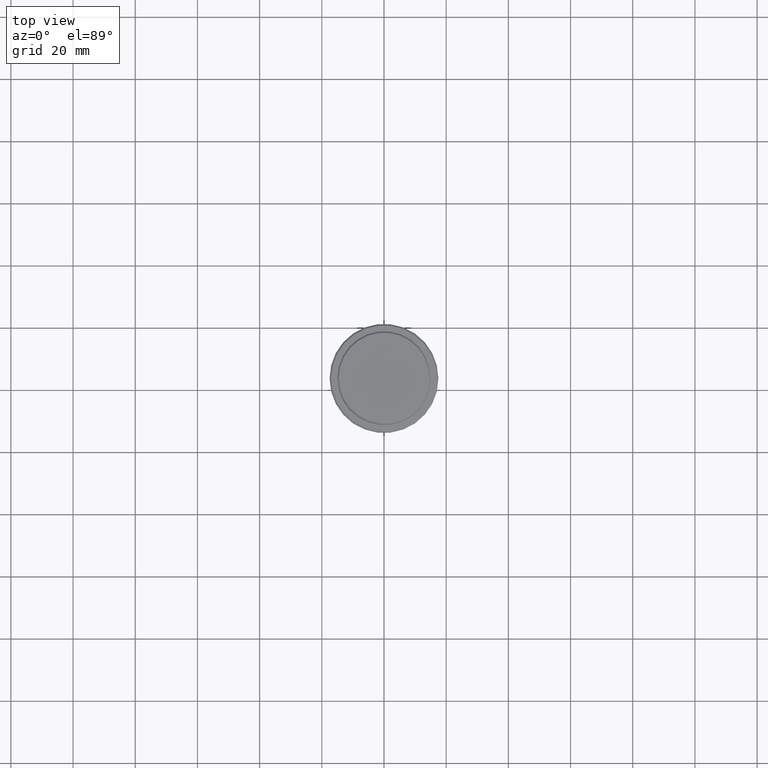
[diagram: clean part render]
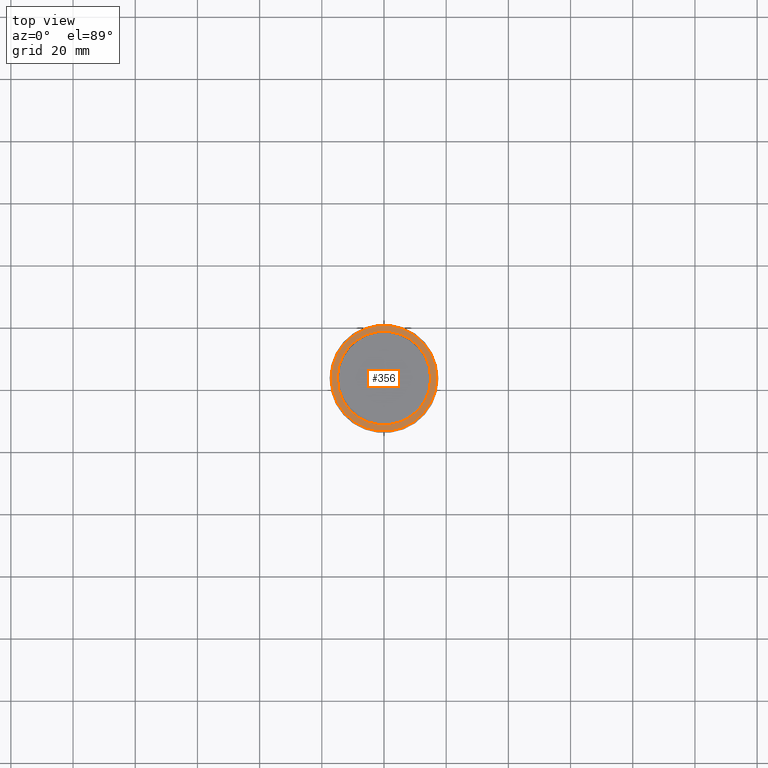
[diagram: same view with one face highlighted and labeled with its STEP entity id]
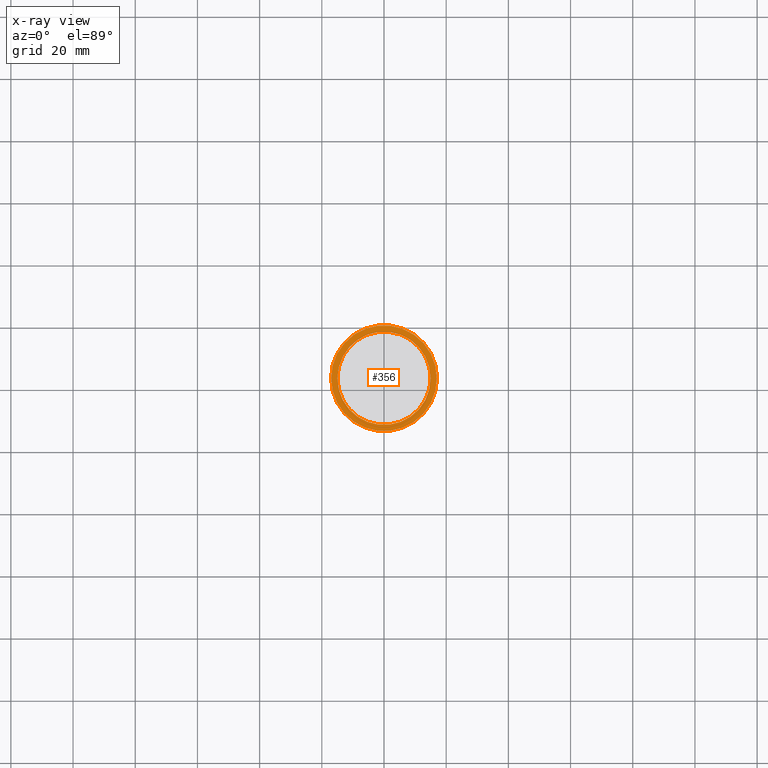
[diagram: x-ray of the same camera — body ghosted, the highlighted face saturated]
A machine part, top view. The second image highlights one B-rep face of the part: STEP entity #356.
The next image is the same camera in x-ray: the body ghosted, the highlighted face saturated — about 0% of this face is hidden behind the body in this view.
In plain terms, the highlighted planar face has unit normal (0, -0, 1).
Its self-contained STEP definition (entity closure, byte-faithful):
#74 = VERTEX_POINT ( 'NONE', #955 ) ;
#80 = DIRECTION ( 'NONE',  ( 1.000000000000000000, 0.000000000000000000, 0.000000000000000000 ) ) ;
#90 = AXIS2_PLACEMENT_3D ( 'NONE', #1134, #388, #80 ) ;
#111 = ORIENTED_EDGE ( 'NONE', *, *, #1365, .T. ) ;
#133 = CIRCLE ( 'NONE', #157, 14.99999999999999289 ) ;
#157 = AXIS2_PLACEMENT_3D ( 'NONE', #398, #637, #1273 ) ;
#160 = DIRECTION ( 'NONE',  ( 1.000000000000000000, 0.000000000000000000, 0.000000000000000000 ) ) ;
#227 = CIRCLE ( 'NONE', #90, 16.99999999999996092 ) ;
#258 = PLANE ( 'NONE',  #1162 ) ;
#264 = EDGE_LOOP ( 'NONE', ( #111, #1251 ) ) ;
#287 = DIRECTION ( 'NONE',  ( 1.000000000000000000, 0.000000000000000000, 0.000000000000000000 ) ) ;
#311 = VERTEX_POINT ( 'NONE', #336 ) ;
#336 = CARTESIAN_POINT ( 'NONE',  ( -14.99999999999999289, 1.836970198721028800E-15, -9.000000000000000000 ) ) ;
#356 = ADVANCED_FACE ( 'NONE', ( #1140, #377 ), #258, .T. ) ;
#367 = AXIS2_PLACEMENT_3D ( 'NONE', #1333, #1234, #805 ) ;
#377 = FACE_BOUND ( 'NONE', #492, .T. ) ;
#382 = EDGE_CURVE ( 'NONE', #74, #311, #1203, .T. ) ;
#384 = DIRECTION ( 'NONE',  ( 0.000000000000000000, 0.000000000000000000, -1.000000000000000000 ) ) ;
#388 = DIRECTION ( 'NONE',  ( -0.000000000000000000, -0.000000000000000000, 1.000000000000000000 ) ) ;
#398 = CARTESIAN_POINT ( 'NONE',  ( 0.000000000000000000, 0.000000000000000000, -9.000000000000000000 ) ) ;
#400 = CARTESIAN_POINT ( 'NONE',  ( -16.99999999999996092, 0.000000000000000000, -9.000000000000000000 ) ) ;
#492 = EDGE_LOOP ( 'NONE', ( #1032, #794 ) ) ;
#499 = VERTEX_POINT ( 'NONE', #400 ) ;
#589 = AXIS2_PLACEMENT_3D ( 'NONE', #801, #384, #287 ) ;
#637 = DIRECTION ( 'NONE',  ( 0.000000000000000000, 0.000000000000000000, -1.000000000000000000 ) ) ;
#700 = VERTEX_POINT ( 'NONE', #1411 ) ;
#794 = ORIENTED_EDGE ( 'NONE', *, *, #1409, .T. ) ;
#801 = CARTESIAN_POINT ( 'NONE',  ( 0.000000000000000000, 0.000000000000000000, -9.000000000000000000 ) ) ;
#805 = DIRECTION ( 'NONE',  ( 1.000000000000000000, 0.000000000000000000, 0.000000000000000000 ) ) ;
#898 = CARTESIAN_POINT ( 'NONE',  ( 0.000000000000000000, 14.49999999999999467, -9.000000000000000000 ) ) ;
#916 = DIRECTION ( 'NONE',  ( 0.000000000000000000, -0.000000000000000000, 1.000000000000000000 ) ) ;
#955 = CARTESIAN_POINT ( 'NONE',  ( 14.99999999999999289, 0.000000000000000000, -9.000000000000000000 ) ) ;
#1032 = ORIENTED_EDGE ( 'NONE', *, *, #382, .T. ) ;
#1117 = CIRCLE ( 'NONE', #367, 16.99999999999996092 ) ;
#1134 = CARTESIAN_POINT ( 'NONE',  ( 0.000000000000000000, 0.000000000000000000, -9.000000000000000000 ) ) ;
#1140 = FACE_OUTER_BOUND ( 'NONE', #264, .T. ) ;
#1162 = AXIS2_PLACEMENT_3D ( 'NONE', #898, #916, #160 ) ;
#1203 = CIRCLE ( 'NONE', #589, 14.99999999999999289 ) ;
#1234 = DIRECTION ( 'NONE',  ( -0.000000000000000000, -0.000000000000000000, 1.000000000000000000 ) ) ;
#1241 = EDGE_CURVE ( 'NONE', #700, #499, #1117, .T. ) ;
#1251 = ORIENTED_EDGE ( 'NONE', *, *, #1241, .T. ) ;
#1273 = DIRECTION ( 'NONE',  ( 1.000000000000000000, 0.000000000000000000, 0.000000000000000000 ) ) ;
#1333 = CARTESIAN_POINT ( 'NONE',  ( 0.000000000000000000, 0.000000000000000000, -9.000000000000000000 ) ) ;
#1365 = EDGE_CURVE ( 'NONE', #499, #700, #227, .T. ) ;
#1409 = EDGE_CURVE ( 'NONE', #311, #74, #133, .T. ) ;
#1411 = CARTESIAN_POINT ( 'NONE',  ( 16.99999999999996092, 2.112515728529182095E-15, -9.000000000000000000 ) ) ;